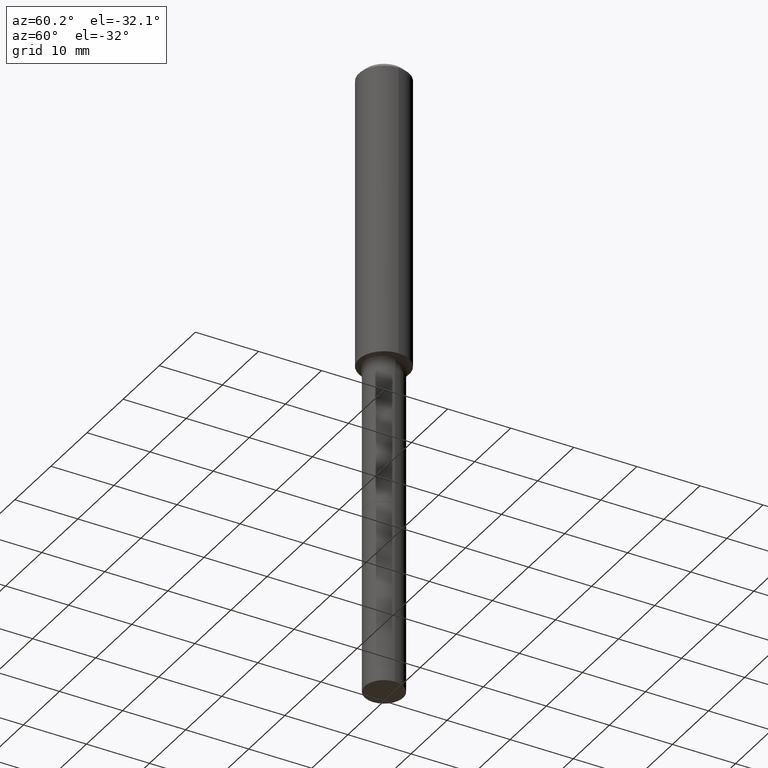
[diagram: clean part render]
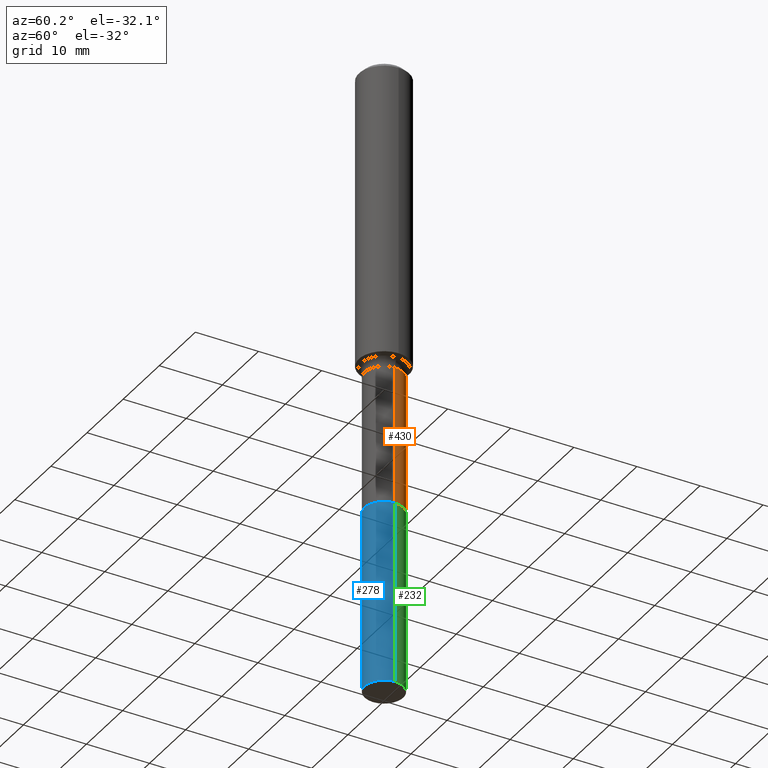
[diagram: same view with three faces highlighted in distinct colors, each labeled with its STEP entity id]
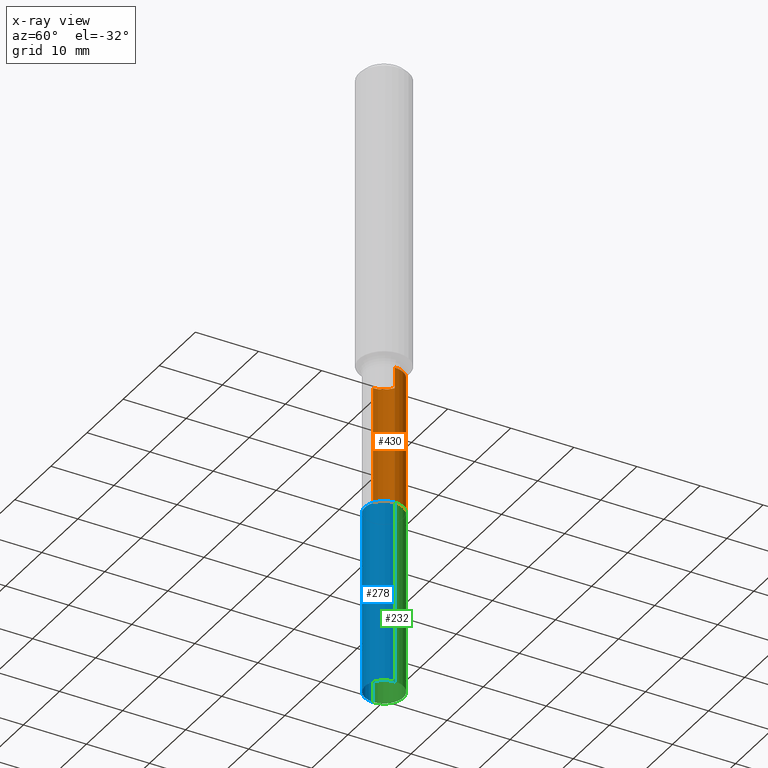
[diagram: x-ray of the same camera — body ghosted, the three highlighted faces saturated]
A machine part, auxiliary view with three faces highlighted in distinct colors.
The next image is the same camera in x-ray (body ghosted, the three faces saturated) — at least one of them is partly hidden behind the body in this view.
Their STEP definitions:

[orange] entity #430 — the highlighted cylindrical surface (edge-blend (fillet) strip) has radius 3.0505 mm, axis along (-0, 0, 1).
#3 = VECTOR ( 'NONE', #514, 39.37007874015748143 ) ;
#10 = FACE_OUTER_BOUND ( 'NONE', #125, .T. ) ;
#14 = VERTEX_POINT ( 'NONE', #257 ) ;
#17 = CARTESIAN_POINT ( 'NONE',  ( 6.833862578884363673E-29, -9.756944601397170777E-15, -2.794499999999999762 ) ) ;
#42 = AXIS2_PLACEMENT_3D ( 'NONE', #17, #497, #328 ) ;
#49 = CARTESIAN_POINT ( 'NONE',  ( 4.717309327131129576E-29, -6.735067502628428981E-15, -1.929000000000000270 ) ) ;
#76 = ORIENTED_EDGE ( 'NONE', *, *, #397, .T. ) ;
#83 = ORIENTED_EDGE ( 'NONE', *, *, #249, .F. ) ;
#104 = AXIS2_PLACEMENT_3D ( 'NONE', #138, #209, #168 ) ;
#123 = VERTEX_POINT ( 'NONE', #468 ) ;
#125 = EDGE_LOOP ( 'NONE', ( #76, #404, #83, #179 ) ) ;
#138 = CARTESIAN_POINT ( 'NONE',  ( 0.000000000000000000, 0.000000000000000000, 0.000000000000000000 ) ) ;
#151 = EDGE_CURVE ( 'NONE', #123, #360, #245, .T. ) ;
#168 = DIRECTION ( 'NONE',  ( 1.000000000000000000, -6.982962677686266711E-15, 4.876176775795936353E-29 ) ) ;
#179 = ORIENTED_EDGE ( 'NONE', *, *, #151, .F. ) ;
#205 = LINE ( 'NONE', #248, #348 ) ;
#209 = DIRECTION ( 'NONE',  ( -2.445468806185136597E-29, 3.491481338843145583E-15, 1.000000000000000000 ) ) ;
#218 = CARTESIAN_POINT ( 'NONE',  ( -0.1200999999999999152, -7.392644226364920454E-15, -1.929000000000000270 ) ) ;
#221 = AXIS2_PLACEMENT_3D ( 'NONE', #49, #447, #401 ) ;
#245 = LINE ( 'NONE', #311, #3 ) ;
#248 = CARTESIAN_POINT ( 'NONE',  ( -0.1200999999999999707, 8.533618256478801148E-16, -5.907641043396140543E-30 ) ) ;
#249 = EDGE_CURVE ( 'NONE', #360, #375, #482, .T. ) ;
#257 = CARTESIAN_POINT ( 'NONE',  ( -0.1201000000000000539, -7.392644226364918876E-15, -2.794499999999999762 ) ) ;
#270 = EDGE_CURVE ( 'NONE', #14, #375, #205, .T. ) ;
#272 = DIRECTION ( 'NONE',  ( -2.445468806185136877E-29, 3.491481338843145188E-15, 1.000000000000000000 ) ) ;
#280 = CIRCLE ( 'NONE', #42, 0.1201000000000000401 ) ;
#292 = CARTESIAN_POINT ( 'NONE',  ( 0.1200999999999999152, -7.573721320218547694E-15, -1.929000000000000270 ) ) ;
#311 = CARTESIAN_POINT ( 'NONE',  ( 0.1200999999999999707, -8.386538175901203898E-16, 5.856288307730917951E-30 ) ) ;
#326 = CYLINDRICAL_SURFACE ( 'NONE', #104, 0.1200999999999999707 ) ;
#328 = DIRECTION ( 'NONE',  ( 1.000000000000000000, -6.982962677686271444E-15, 0.000000000000000000 ) ) ;
#348 = VECTOR ( 'NONE', #272, 39.37007874015748143 ) ;
#360 = VERTEX_POINT ( 'NONE', #292 ) ;
#375 = VERTEX_POINT ( 'NONE', #218 ) ;
#397 = EDGE_CURVE ( 'NONE', #123, #14, #280, .T. ) ;
#401 = DIRECTION ( 'NONE',  ( 1.000000000000000000, -6.982962677686261977E-15, 0.000000000000000000 ) ) ;
#404 = ORIENTED_EDGE ( 'NONE', *, *, #270, .T. ) ;
#430 = ADVANCED_FACE ( 'NONE', ( #10 ), #326, .T. ) ;
#447 = DIRECTION ( 'NONE',  ( -2.445468806185136597E-29, 3.491481338843145583E-15, 1.000000000000000000 ) ) ;
#468 = CARTESIAN_POINT ( 'NONE',  ( 0.1201000000000000401, -1.059559841898729107E-14, -2.794499999999999762 ) ) ;
#482 = CIRCLE ( 'NONE', #221, 0.1200999999999999152 ) ;
#497 = DIRECTION ( 'NONE',  ( -2.445468806185136597E-29, 3.491481338843145583E-15, 1.000000000000000000 ) ) ;
#514 = DIRECTION ( 'NONE',  ( -2.445468806185136877E-29, 3.491481338843145188E-15, 1.000000000000000000 ) ) ;

[blue] entity #278 — the highlighted cylindrical surface (edge-blend (fillet) strip) has radius 3.0505 mm, axis along (-0, 0, 1).
#2 = EDGE_CURVE ( 'NONE', #437, #194, #307, .T. ) ;
#12 = CARTESIAN_POINT ( 'NONE',  ( 0.1200999999999999984, -1.458461584861558686E-14, -3.937000000000000277 ) ) ;
#34 = DIRECTION ( 'NONE',  ( 1.000000000000000000, -6.982962677686273810E-15, 0.000000000000000000 ) ) ;
#51 = AXIS2_PLACEMENT_3D ( 'NONE', #500, #133, #374 ) ;
#57 = ORIENTED_EDGE ( 'NONE', *, *, #2, .T. ) ;
#74 = CYLINDRICAL_SURFACE ( 'NONE', #166, 0.1200999999999999984 ) ;
#77 = CARTESIAN_POINT ( 'NONE',  ( -0.1200999999999999984, -8.905328516418712067E-15, -2.794999999999999929 ) ) ;
#108 = VECTOR ( 'NONE', #128, 39.37007874015748143 ) ;
#117 = FACE_OUTER_BOUND ( 'NONE', #286, .T. ) ;
#127 = CIRCLE ( 'NONE', #182, 0.1200999999999999984 ) ;
#128 = DIRECTION ( 'NONE',  ( -2.445468806185136877E-29, 3.491481338843145188E-15, 1.000000000000000000 ) ) ;
#133 = DIRECTION ( 'NONE',  ( -2.445468806185136597E-29, 3.491481338843145583E-15, 1.000000000000000000 ) ) ;
#154 = EDGE_CURVE ( 'NONE', #196, #229, #398, .T. ) ;
#166 = AXIS2_PLACEMENT_3D ( 'NONE', #315, #442, #34 ) ;
#182 = AXIS2_PLACEMENT_3D ( 'NONE', #465, #435, #259 ) ;
#188 = CARTESIAN_POINT ( 'NONE',  ( 0.1200999999999999984, -1.059734415965671336E-14, -2.794999999999999929 ) ) ;
#194 = VERTEX_POINT ( 'NONE', #452 ) ;
#196 = VERTEX_POINT ( 'NONE', #412 ) ;
#229 = VERTEX_POINT ( 'NONE', #511 ) ;
#259 = DIRECTION ( 'NONE',  ( 1.000000000000000000, -6.982962677686273810E-15, 0.000000000000000000 ) ) ;
#278 = ADVANCED_FACE ( 'NONE', ( #117 ), #74, .T. ) ;
#286 = EDGE_LOOP ( 'NONE', ( #444, #406, #57, #441 ) ) ;
#303 = VECTOR ( 'NONE', #349, 39.37007874015748143 ) ;
#307 = LINE ( 'NONE', #188, #303 ) ;
#315 = CARTESIAN_POINT ( 'NONE',  ( 6.835085313287456474E-29, -9.758690342066593069E-15, -2.794999999999999929 ) ) ;
#349 = DIRECTION ( 'NONE',  ( -2.445468806185136877E-29, 3.491481338843145188E-15, 1.000000000000000000 ) ) ;
#374 = DIRECTION ( 'NONE',  ( 1.000000000000000000, -6.982962677686273810E-15, 0.000000000000000000 ) ) ;
#398 = LINE ( 'NONE', #77, #108 ) ;
#406 = ORIENTED_EDGE ( 'NONE', *, *, #508, .T. ) ;
#412 = CARTESIAN_POINT ( 'NONE',  ( -0.1200999999999999984, -1.089896436089814803E-14, -3.937000000000000277 ) ) ;
#435 = DIRECTION ( 'NONE',  ( -2.445468806185136597E-29, 3.491481338843145583E-15, 1.000000000000000000 ) ) ;
#436 = EDGE_CURVE ( 'NONE', #229, #194, #512, .T. ) ;
#437 = VERTEX_POINT ( 'NONE', #12 ) ;
#441 = ORIENTED_EDGE ( 'NONE', *, *, #436, .F. ) ;
#442 = DIRECTION ( 'NONE',  ( -2.445468806185136597E-29, 3.491481338843145583E-15, 1.000000000000000000 ) ) ;
#444 = ORIENTED_EDGE ( 'NONE', *, *, #154, .F. ) ;
#452 = CARTESIAN_POINT ( 'NONE',  ( 0.1200999999999999984, -1.059734415965671336E-14, -2.794999999999999929 ) ) ;
#465 = CARTESIAN_POINT ( 'NONE',  ( 9.627810689950883669E-29, -1.374596203102546341E-14, -3.937000000000000277 ) ) ;
#500 = CARTESIAN_POINT ( 'NONE',  ( 6.835085313287456474E-29, -9.758690342066593069E-15, -2.794999999999999929 ) ) ;
#508 = EDGE_CURVE ( 'NONE', #196, #437, #127, .T. ) ;
#511 = CARTESIAN_POINT ( 'NONE',  ( -0.1200999999999999984, -1.089896436089814803E-14, -2.794999999999999929 ) ) ;
#512 = CIRCLE ( 'NONE', #51, 0.1200999999999999984 ) ;

[green] entity #232 — the highlighted cylindrical surface (edge-blend (fillet) strip) has radius 3.0505 mm, axis along (-0, 0, 1).
#2 = EDGE_CURVE ( 'NONE', #437, #194, #307, .T. ) ;
#4 = CARTESIAN_POINT ( 'NONE',  ( 6.835085313287456474E-29, -9.758690342066593069E-15, -2.794999999999999929 ) ) ;
#12 = CARTESIAN_POINT ( 'NONE',  ( 0.1200999999999999984, -1.458461584861558686E-14, -3.937000000000000277 ) ) ;
#23 = AXIS2_PLACEMENT_3D ( 'NONE', #294, #456, #302 ) ;
#47 = AXIS2_PLACEMENT_3D ( 'NONE', #4, #89, #481 ) ;
#77 = CARTESIAN_POINT ( 'NONE',  ( -0.1200999999999999984, -8.905328516418712067E-15, -2.794999999999999929 ) ) ;
#89 = DIRECTION ( 'NONE',  ( -2.445468806185136597E-29, 3.491481338843145583E-15, 1.000000000000000000 ) ) ;
#108 = VECTOR ( 'NONE', #128, 39.37007874015748143 ) ;
#119 = DIRECTION ( 'NONE',  ( 1.000000000000000000, -6.982962677686273810E-15, 0.000000000000000000 ) ) ;
#128 = DIRECTION ( 'NONE',  ( -2.445468806185136877E-29, 3.491481338843145188E-15, 1.000000000000000000 ) ) ;
#143 = CARTESIAN_POINT ( 'NONE',  ( 6.835085313287456474E-29, -9.758690342066593069E-15, -2.794999999999999929 ) ) ;
#144 = EDGE_CURVE ( 'NONE', #194, #229, #408, .T. ) ;
#154 = EDGE_CURVE ( 'NONE', #196, #229, #398, .T. ) ;
#172 = EDGE_LOOP ( 'NONE', ( #242, #190, #230, #460 ) ) ;
#188 = CARTESIAN_POINT ( 'NONE',  ( 0.1200999999999999984, -1.059734415965671336E-14, -2.794999999999999929 ) ) ;
#190 = ORIENTED_EDGE ( 'NONE', *, *, #154, .T. ) ;
#191 = CYLINDRICAL_SURFACE ( 'NONE', #47, 0.1200999999999999984 ) ;
#194 = VERTEX_POINT ( 'NONE', #452 ) ;
#196 = VERTEX_POINT ( 'NONE', #412 ) ;
#206 = CIRCLE ( 'NONE', #23, 0.1200999999999999984 ) ;
#229 = VERTEX_POINT ( 'NONE', #511 ) ;
#230 = ORIENTED_EDGE ( 'NONE', *, *, #144, .F. ) ;
#232 = ADVANCED_FACE ( 'NONE', ( #413 ), #191, .T. ) ;
#242 = ORIENTED_EDGE ( 'NONE', *, *, #306, .T. ) ;
#294 = CARTESIAN_POINT ( 'NONE',  ( 9.627810689950883669E-29, -1.374596203102546341E-14, -3.937000000000000277 ) ) ;
#302 = DIRECTION ( 'NONE',  ( 1.000000000000000000, -6.982962677686273810E-15, 0.000000000000000000 ) ) ;
#303 = VECTOR ( 'NONE', #349, 39.37007874015748143 ) ;
#306 = EDGE_CURVE ( 'NONE', #437, #196, #206, .T. ) ;
#307 = LINE ( 'NONE', #188, #303 ) ;
#349 = DIRECTION ( 'NONE',  ( -2.445468806185136877E-29, 3.491481338843145188E-15, 1.000000000000000000 ) ) ;
#398 = LINE ( 'NONE', #77, #108 ) ;
#408 = CIRCLE ( 'NONE', #423, 0.1200999999999999984 ) ;
#412 = CARTESIAN_POINT ( 'NONE',  ( -0.1200999999999999984, -1.089896436089814803E-14, -3.937000000000000277 ) ) ;
#413 = FACE_OUTER_BOUND ( 'NONE', #172, .T. ) ;
#423 = AXIS2_PLACEMENT_3D ( 'NONE', #143, #491, #119 ) ;
#437 = VERTEX_POINT ( 'NONE', #12 ) ;
#452 = CARTESIAN_POINT ( 'NONE',  ( 0.1200999999999999984, -1.059734415965671336E-14, -2.794999999999999929 ) ) ;
#456 = DIRECTION ( 'NONE',  ( -2.445468806185136597E-29, 3.491481338843145583E-15, 1.000000000000000000 ) ) ;
#460 = ORIENTED_EDGE ( 'NONE', *, *, #2, .F. ) ;
#481 = DIRECTION ( 'NONE',  ( 1.000000000000000000, -6.982962677686273810E-15, 0.000000000000000000 ) ) ;
#491 = DIRECTION ( 'NONE',  ( -2.445468806185136597E-29, 3.491481338843145583E-15, 1.000000000000000000 ) ) ;
#511 = CARTESIAN_POINT ( 'NONE',  ( -0.1200999999999999984, -1.089896436089814803E-14, -2.794999999999999929 ) ) ;